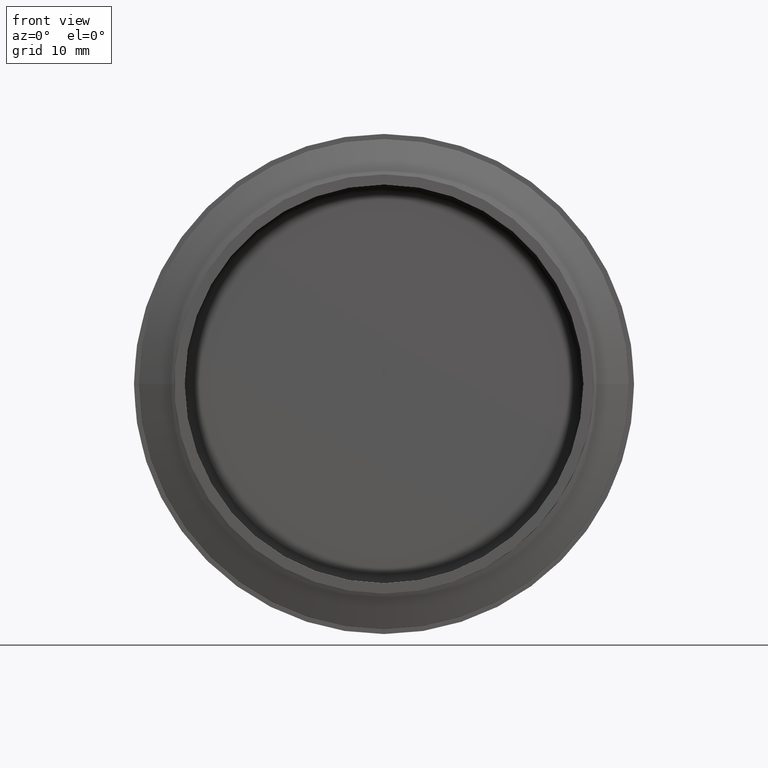
[diagram: clean part render]
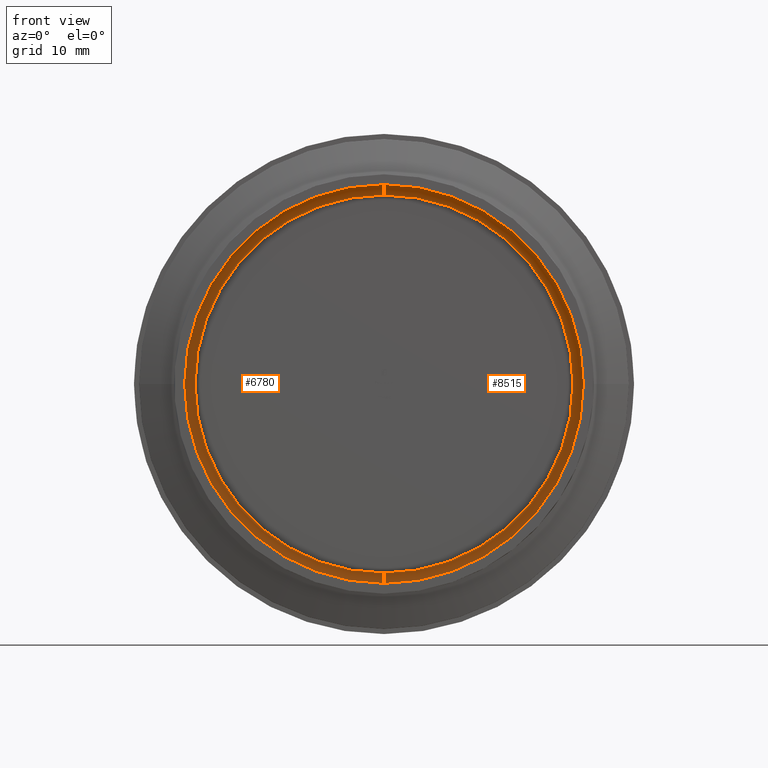
[diagram: same view with one multi-face feature highlighted, each face labeled with its STEP entity id]
A machine part, front view. The highlighted faces form ONE feature: a constant-radius fillet chain: 2 tangent blend faces with common blend radius 1 mm. The faces share edges in the B-rep.
Their STEP definitions:
[1] entity #6780 (Torus):
#72 = DIRECTION ( 'NONE',  ( -1.224646799147353454E-16, 0.000000000000000000, -1.000000000000000000 ) ) ;
#173 = EDGE_LOOP ( 'NONE', ( #10740, #8579, #196, #12305 ) ) ;
#196 = ORIENTED_EDGE ( 'NONE', *, *, #1223, .F. ) ;
#344 = VERTEX_POINT ( 'NONE', #5505 ) ;
#712 = EDGE_CURVE ( 'NONE', #5217, #11994, #11774, .T. ) ;
#1025 = FACE_OUTER_BOUND ( 'NONE', #173, .T. ) ;
#1110 = CARTESIAN_POINT ( 'NONE',  ( 0.000000000000000000, 11.99999999999999289, 0.000000000000000000 ) ) ;
#1223 = EDGE_CURVE ( 'NONE', #9621, #344, #2016, .T. ) ;
#1880 = CARTESIAN_POINT ( 'NONE',  ( 0.000000000000000000, 11.99999999999999289, 0.000000000000000000 ) ) ;
#2016 = CIRCLE ( 'NONE', #2465, 19.25000000000000000 ) ;
#2037 = CARTESIAN_POINT ( 'NONE',  ( 2.234980408443919215E-15, 11.99999999999999289, 18.25000000000000000 ) ) ;
#2100 = DIRECTION ( 'NONE',  ( 0.000000000000000000, 1.000000000000000000, 0.000000000000000000 ) ) ;
#2465 = AXIS2_PLACEMENT_3D ( 'NONE', #1110, #2100, #10789 ) ;
#2487 = AXIS2_PLACEMENT_3D ( 'NONE', #6176, #11054, #5210 ) ;
#3336 = CIRCLE ( 'NONE', #5576, 1.000000000000000888 ) ;
#3892 = CARTESIAN_POINT ( 'NONE',  ( 0.000000000000000000, 12.99999999999999467, -18.25000000000000000 ) ) ;
#4538 = EDGE_CURVE ( 'NONE', #5217, #344, #3336, .T. ) ;
#4810 = DIRECTION ( 'NONE',  ( -0.000000000000000000, -1.000000000000000000, -0.000000000000000000 ) ) ;
#4992 = TOROIDAL_SURFACE ( 'NONE', #8788, 18.25000000000000000, 1.000000000000000000 ) ;
#5210 = DIRECTION ( 'NONE',  ( 0.000000000000000000, 0.000000000000000000, 1.000000000000000000 ) ) ;
#5217 = VERTEX_POINT ( 'NONE', #9886 ) ;
#5286 = CARTESIAN_POINT ( 'NONE',  ( 0.000000000000000000, 11.99999999999999289, -19.25000000000000000 ) ) ;
#5391 = EDGE_CURVE ( 'NONE', #11994, #9621, #8688, .T. ) ;
#5505 = CARTESIAN_POINT ( 'NONE',  ( 2.357445088358654757E-15, 11.99999999999999289, 19.25000000000000000 ) ) ;
#5576 = AXIS2_PLACEMENT_3D ( 'NONE', #2037, #9815, #72 ) ;
#6176 = CARTESIAN_POINT ( 'NONE',  ( 0.000000000000000000, 11.99999999999999289, -18.25000000000000000 ) ) ;
#6300 = DIRECTION ( 'NONE',  ( -0.000000000000000000, -1.000000000000000000, -0.000000000000000000 ) ) ;
#6780 = ADVANCED_FACE ( 'NONE', ( #1025 ), #4992, .F. ) ;
#8579 = ORIENTED_EDGE ( 'NONE', *, *, #4538, .T. ) ;
#8688 = CIRCLE ( 'NONE', #2487, 1.000000000000000888 ) ;
#8788 = AXIS2_PLACEMENT_3D ( 'NONE', #1880, #4810, #12600 ) ;
#9099 = AXIS2_PLACEMENT_3D ( 'NONE', #9391, #6300, #10323 ) ;
#9391 = CARTESIAN_POINT ( 'NONE',  ( 0.000000000000000000, 12.99999999999999467, 0.000000000000000000 ) ) ;
#9621 = VERTEX_POINT ( 'NONE', #5286 ) ;
#9815 = DIRECTION ( 'NONE',  ( 1.000000000000000000, 0.000000000000000000, -1.224646799147353207E-16 ) ) ;
#9886 = CARTESIAN_POINT ( 'NONE',  ( 2.296212748401286789E-15, 12.99999999999999467, 18.25000000000000000 ) ) ;
#10323 = DIRECTION ( 'NONE',  ( 0.000000000000000000, 0.000000000000000000, -1.000000000000000000 ) ) ;
#10740 = ORIENTED_EDGE ( 'NONE', *, *, #712, .F. ) ;
#10789 = DIRECTION ( 'NONE',  ( 0.000000000000000000, 0.000000000000000000, -1.000000000000000000 ) ) ;
#11054 = DIRECTION ( 'NONE',  ( -1.000000000000000000, 0.000000000000000000, 0.000000000000000000 ) ) ;
#11774 = CIRCLE ( 'NONE', #9099, 18.25000000000000000 ) ;
#11994 = VERTEX_POINT ( 'NONE', #3892 ) ;
#12305 = ORIENTED_EDGE ( 'NONE', *, *, #5391, .F. ) ;
#12600 = DIRECTION ( 'NONE',  ( 0.000000000000000000, 0.000000000000000000, -1.000000000000000000 ) ) ;
[2] entity #8515 (Torus):
#72 = DIRECTION ( 'NONE',  ( -1.224646799147353454E-16, 0.000000000000000000, -1.000000000000000000 ) ) ;
#254 = EDGE_CURVE ( 'NONE', #344, #9621, #2041, .T. ) ;
#344 = VERTEX_POINT ( 'NONE', #5505 ) ;
#991 = CARTESIAN_POINT ( 'NONE',  ( 0.000000000000000000, 12.99999999999999467, 0.000000000000000000 ) ) ;
#1744 = DIRECTION ( 'NONE',  ( -0.000000000000000000, -1.000000000000000000, -0.000000000000000000 ) ) ;
#2037 = CARTESIAN_POINT ( 'NONE',  ( 2.234980408443919215E-15, 11.99999999999999289, 18.25000000000000000 ) ) ;
#2041 = CIRCLE ( 'NONE', #3592, 19.25000000000000000 ) ;
#2112 = DIRECTION ( 'NONE',  ( -0.000000000000000000, -1.000000000000000000, -0.000000000000000000 ) ) ;
#2487 = AXIS2_PLACEMENT_3D ( 'NONE', #6176, #11054, #5210 ) ;
#2519 = ORIENTED_EDGE ( 'NONE', *, *, #5195, .F. ) ;
#3336 = CIRCLE ( 'NONE', #5576, 1.000000000000000888 ) ;
#3505 = EDGE_LOOP ( 'NONE', ( #7618, #2519, #5917, #9824 ) ) ;
#3592 = AXIS2_PLACEMENT_3D ( 'NONE', #10333, #3614, #8429 ) ;
#3614 = DIRECTION ( 'NONE',  ( 0.000000000000000000, 1.000000000000000000, 0.000000000000000000 ) ) ;
#3892 = CARTESIAN_POINT ( 'NONE',  ( 0.000000000000000000, 12.99999999999999467, -18.25000000000000000 ) ) ;
#4538 = EDGE_CURVE ( 'NONE', #5217, #344, #3336, .T. ) ;
#5195 = EDGE_CURVE ( 'NONE', #11994, #5217, #7786, .T. ) ;
#5210 = DIRECTION ( 'NONE',  ( 0.000000000000000000, 0.000000000000000000, 1.000000000000000000 ) ) ;
#5217 = VERTEX_POINT ( 'NONE', #9886 ) ;
#5286 = CARTESIAN_POINT ( 'NONE',  ( 0.000000000000000000, 11.99999999999999289, -19.25000000000000000 ) ) ;
#5391 = EDGE_CURVE ( 'NONE', #11994, #9621, #8688, .T. ) ;
#5505 = CARTESIAN_POINT ( 'NONE',  ( 2.357445088358654757E-15, 11.99999999999999289, 19.25000000000000000 ) ) ;
#5576 = AXIS2_PLACEMENT_3D ( 'NONE', #2037, #9815, #72 ) ;
#5700 = DIRECTION ( 'NONE',  ( 0.000000000000000000, 0.000000000000000000, -1.000000000000000000 ) ) ;
#5917 = ORIENTED_EDGE ( 'NONE', *, *, #5391, .T. ) ;
#6176 = CARTESIAN_POINT ( 'NONE',  ( 0.000000000000000000, 11.99999999999999289, -18.25000000000000000 ) ) ;
#6342 = TOROIDAL_SURFACE ( 'NONE', #7578, 18.25000000000000000, 1.000000000000000000 ) ;
#6929 = DIRECTION ( 'NONE',  ( 0.000000000000000000, 0.000000000000000000, -1.000000000000000000 ) ) ;
#7578 = AXIS2_PLACEMENT_3D ( 'NONE', #7600, #1744, #5700 ) ;
#7600 = CARTESIAN_POINT ( 'NONE',  ( 0.000000000000000000, 11.99999999999999289, 0.000000000000000000 ) ) ;
#7618 = ORIENTED_EDGE ( 'NONE', *, *, #4538, .F. ) ;
#7786 = CIRCLE ( 'NONE', #11230, 18.25000000000000000 ) ;
#8429 = DIRECTION ( 'NONE',  ( 0.000000000000000000, 0.000000000000000000, -1.000000000000000000 ) ) ;
#8515 = ADVANCED_FACE ( 'NONE', ( #11979 ), #6342, .F. ) ;
#8688 = CIRCLE ( 'NONE', #2487, 1.000000000000000888 ) ;
#9621 = VERTEX_POINT ( 'NONE', #5286 ) ;
#9815 = DIRECTION ( 'NONE',  ( 1.000000000000000000, 0.000000000000000000, -1.224646799147353207E-16 ) ) ;
#9824 = ORIENTED_EDGE ( 'NONE', *, *, #254, .F. ) ;
#9886 = CARTESIAN_POINT ( 'NONE',  ( 2.296212748401286789E-15, 12.99999999999999467, 18.25000000000000000 ) ) ;
#10333 = CARTESIAN_POINT ( 'NONE',  ( 0.000000000000000000, 11.99999999999999289, 0.000000000000000000 ) ) ;
#11054 = DIRECTION ( 'NONE',  ( -1.000000000000000000, 0.000000000000000000, 0.000000000000000000 ) ) ;
#11230 = AXIS2_PLACEMENT_3D ( 'NONE', #991, #2112, #6929 ) ;
#11979 = FACE_OUTER_BOUND ( 'NONE', #3505, .T. ) ;
#11994 = VERTEX_POINT ( 'NONE', #3892 ) ;